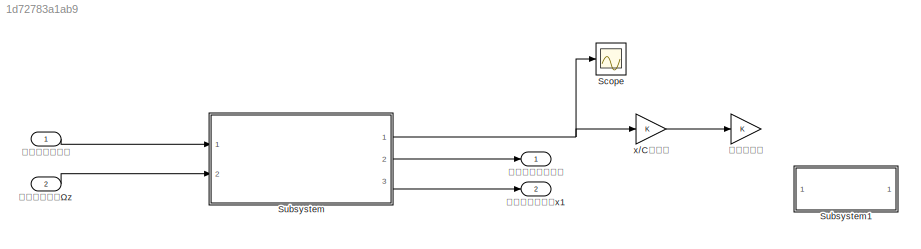
MODEL slx_1d72783a1ab9
KIND model
CONFIG AbsTol = auto
CONFIG EnableMultiTasking = off
CONFIG FixedStep = auto
CONFIG MaxStep = auto
CONFIG MinStep = auto
CONFIG RelTol = 1e-3
CONFIG SampleTimeConstraint = Unconstrained
CONFIG Solver = VariableStepAuto
CONFIG SolverName = VariableStepAuto
CONFIG StartTime = 0.0
CONFIG StopTime = 10.0
BLOCK [Scope] Scope
  Floating = off
  NumInputPorts = 1
  Ports = [1]
  ScopeSpecificationString = Simulink.scopes.TimeScopeBlockCfg('CurrentConfiguration', extmgr.ConfigurationSet(extmgr.Configuration('Core','General UI',true),extmgr.Configuration('Core','Source UI',true),extmgr.Configuration('Sources','WiredSimulink',true),extmgr.Configuration('Visuals','Time Domain',true),extmgr.Configuration('Tools','Plot Navigation',true),extmgr.Configuration('Tools','Measurements',true)),'Version','2019b'...<+1ch>
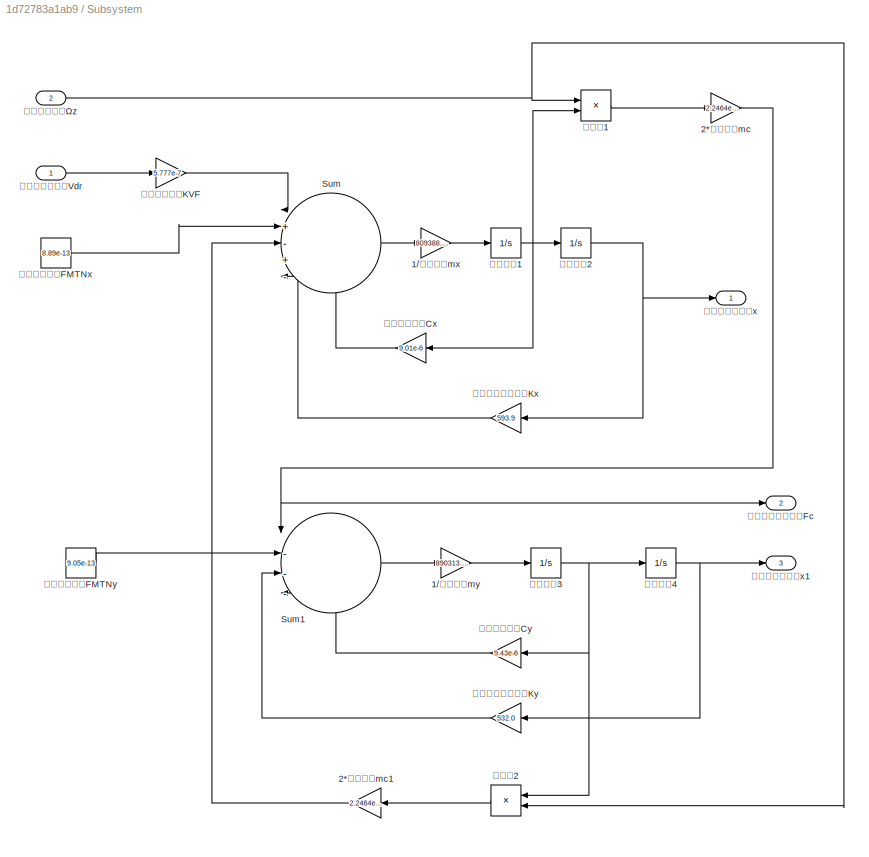
BLOCK [SubSystem] Subsystem
  Ports = [2, 3]
  RequestExecContextInheritance = off
BLOCK [Gain] Subsystem/1//检测质量my
  Gain = 890313.390
  OutDataTypeStr = Inherit: Inherit via internal rule
  ParamDataTypeStr = Inherit: Inherit via internal rule
  SaturateOnIntegerOverflow = off
BLOCK [Gain] Subsystem/1//驱动质量mx
  Gain = 809388.911
  OutDataTypeStr = Inherit: Inherit via internal rule
  ParamDataTypeStr = Inherit: Inherit via internal rule
  SaturateOnIntegerOverflow = off
BLOCK [Gain] Subsystem/2*敏感质量mc
  Gain = 2.2464e-6
  OutDataTypeStr = Inherit: Inherit via internal rule
  ParamDataTypeStr = Inherit: Inherit via internal rule
  SaturateOnIntegerOverflow = off
BLOCK [Gain] Subsystem/2*敏感质量mc1
  Gain = 2.2464e-6
  OutDataTypeStr = Inherit: Inherit via internal rule
  ParamDataTypeStr = Inherit: Inherit via internal rule
  SaturateOnIntegerOverflow = off
BLOCK [Sum] Subsystem/Sum
  IconShape = round
  InputSameDT = off
  Inputs = |+-+--
  OutDataTypeStr = Inherit: Inherit via internal rule
  Ports = [5, 1]
  SaturateOnIntegerOverflow = off
BLOCK [Sum] Subsystem/Sum1
  IconShape = round
  InputSameDT = off
  Inputs = |----
  OutDataTypeStr = Inherit: Inherit via internal rule
  Ports = [4, 1]
  SaturateOnIntegerOverflow = off
BLOCK [Product] Subsystem/乘法器1
  InputSameDT = off
  OutDataTypeStr = Inherit: Inherit via internal rule
  Ports = [2, 1]
  RndMeth = Floor
  SaturateOnIntegerOverflow = off
BLOCK [Product] Subsystem/乘法器2
  InputSameDT = off
  OutDataTypeStr = Inherit: Inherit via internal rule
  Ports = [2, 1]
  RndMeth = Floor
  SaturateOnIntegerOverflow = off
BLOCK [Constant] Subsystem/机械热噪声：FMTNx
  Value = 8.89e-13
BLOCK [Constant] Subsystem/机械热噪声：FMTNy
  Value = 9.05e-13
BLOCK [Gain] Subsystem/检测弹性刚度系数Ky
  Gain = 532.0
  OutDataTypeStr = Inherit: Inherit via internal rule
  ParamDataTypeStr = Inherit: Inherit via internal rule
  SaturateOnIntegerOverflow = off
BLOCK [Gain] Subsystem/检测阻尼系数Cy
  Gain = 9.43e-6
  OutDataTypeStr = Inherit: Inherit via internal rule
  ParamDataTypeStr = Inherit: Inherit via internal rule
  SaturateOnIntegerOverflow = off
BLOCK [Integrator] Subsystem/积分环节1
  Ports = [1, 1]
BLOCK [Integrator] Subsystem/积分环节2
  Ports = [1, 1]
BLOCK [Integrator] Subsystem/积分环节3
  Ports = [1, 1]
BLOCK [Integrator] Subsystem/积分环节4
  Ports = [1, 1]
BLOCK [Inport] Subsystem/输入：角速度Ωz
  IconDisplay = Port number
  Port = 2
BLOCK [Inport] Subsystem/输入：驱动电压Vdr
  IconDisplay = Port number
BLOCK [Outport] Subsystem/输出：哥氏力观测Fc
  IconDisplay = Port number
  Port = 2
BLOCK [Outport] Subsystem/输出：检测位移x1
  IconDisplay = Port number
  Port = 3
BLOCK [Outport] Subsystem/输出：驱动位移x
  IconDisplay = Port number
BLOCK [Gain] Subsystem/驱动力矩器：KVF
  Gain = 5.777e-7
  OutDataTypeStr = Inherit: Inherit via internal rule
  ParamDataTypeStr = Inherit: Inherit via internal rule
  SaturateOnIntegerOverflow = off
BLOCK [Gain] Subsystem/驱动弹性刚度系数Kx
  Gain = 593.9
  OutDataTypeStr = Inherit: Inherit via internal rule
  ParamDataTypeStr = Inherit: Inherit via internal rule
  SaturateOnIntegerOverflow = off
BLOCK [Gain] Subsystem/驱动阻尼系数Cx
  Gain = 9.01e-6
  OutDataTypeStr = Inherit: Inherit via internal rule
  ParamDataTypeStr = Inherit: Inherit via internal rule
  SaturateOnIntegerOverflow = off
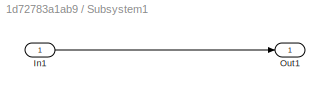
BLOCK [SubSystem] Subsystem1
  Ports = [1, 1]
  RequestExecContextInheritance = off
BLOCK [Inport] Subsystem1/In1
  IconDisplay = Port number
BLOCK [Outport] Subsystem1/Out1
  IconDisplay = Port number
BLOCK [Gain] x//C转换器
  OutDataTypeStr = Inherit: Inherit via internal rule
  ParamDataTypeStr = Inherit: Inherit via internal rule
  SaturateOnIntegerOverflow = off
BLOCK [Gain] 前级放大器
  OutDataTypeStr = Inherit: Inherit via internal rule
  ParamDataTypeStr = Inherit: Inherit via internal rule
  SaturateOnIntegerOverflow = off
BLOCK [Inport] 输入：角速度Ωz
  IconDisplay = Port number
  Port = 2
BLOCK [Inport] 输入：驱动电压
  IconDisplay = Port number
BLOCK [Outport] 输出：哥氏力观测
  IconDisplay = Port number
BLOCK [Outport] 输出：检测位移x1
  IconDisplay = Port number
  Port = 2
LINE Subsystem/1//检测质量my:1 -> Subsystem/积分环节3:1
LINE Subsystem/1//驱动质量mx:1 -> Subsystem/积分环节1:1
LINE Subsystem/2*敏感质量mc1:1 -> Subsystem/Sum:3
NET Subsystem/2*敏感质量mc:1 -> Subsystem/Sum1:1, Subsystem/输出：哥氏力观测Fc:1
LINE Subsystem/Sum1:1 -> Subsystem/1//检测质量my:1
LINE Subsystem/Sum:1 -> Subsystem/1//驱动质量mx:1
LINE Subsystem/乘法器1:1 -> Subsystem/2*敏感质量mc:1
LINE Subsystem/乘法器2:1 -> Subsystem/2*敏感质量mc1:1
LINE Subsystem/机械热噪声：FMTNx:1 -> Subsystem/Sum:2
LINE Subsystem/机械热噪声：FMTNy:1 -> Subsystem/Sum1:2
LINE Subsystem/检测弹性刚度系数Ky:1 -> Subsystem/Sum1:3
LINE Subsystem/检测阻尼系数Cy:1 -> Subsystem/Sum1:4
NET Subsystem/积分环节1:1 -> Subsystem/乘法器1:2, Subsystem/积分环节2:1, Subsystem/驱动阻尼系数Cx:1
NET Subsystem/积分环节2:1 -> Subsystem/输出：驱动位移x:1, Subsystem/驱动弹性刚度系数Kx:1
NET Subsystem/积分环节3:1 -> Subsystem/乘法器2:1, Subsystem/检测阻尼系数Cy:1, Subsystem/积分环节4:1
NET Subsystem/积分环节4:1 -> Subsystem/检测弹性刚度系数Ky:1, Subsystem/输出：检测位移x1:1
NET Subsystem/输入：角速度Ωz:1 -> Subsystem/乘法器1:1, Subsystem/乘法器2:2
LINE Subsystem/输入：驱动电压Vdr:1 -> Subsystem/驱动力矩器：KVF:1
LINE Subsystem/驱动力矩器：KVF:1 -> Subsystem/Sum:1
LINE Subsystem/驱动弹性刚度系数Kx:1 -> Subsystem/Sum:4
LINE Subsystem/驱动阻尼系数Cx:1 -> Subsystem/Sum:5
LINE Subsystem1/In1:1 -> Subsystem1/Out1:1
NET Subsystem:1 -> Scope:1, x//C转换器:1
LINE Subsystem:2 -> 输出：哥氏力观测:1
LINE Subsystem:3 -> 输出：检测位移x1:1
LINE x//C转换器:1 -> 前级放大器:1
LINE 输入：角速度Ωz:1 -> Subsystem:2
LINE 输入：驱动电压:1 -> Subsystem:1
note: NET lines group one-source signal fan-out (src -> all destinations, sorted); 1:1 wires keep LINE
